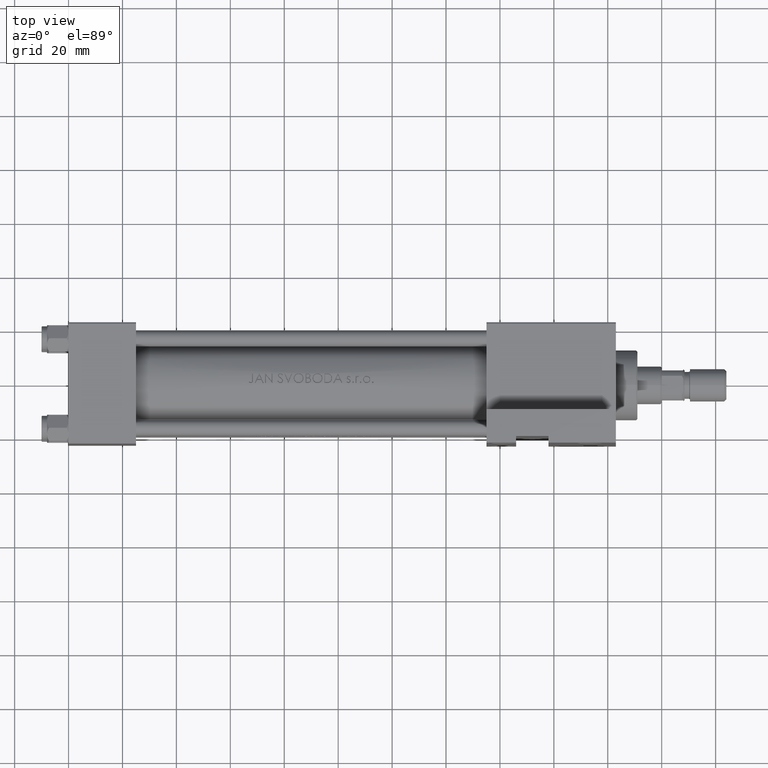
[diagram: clean part render]
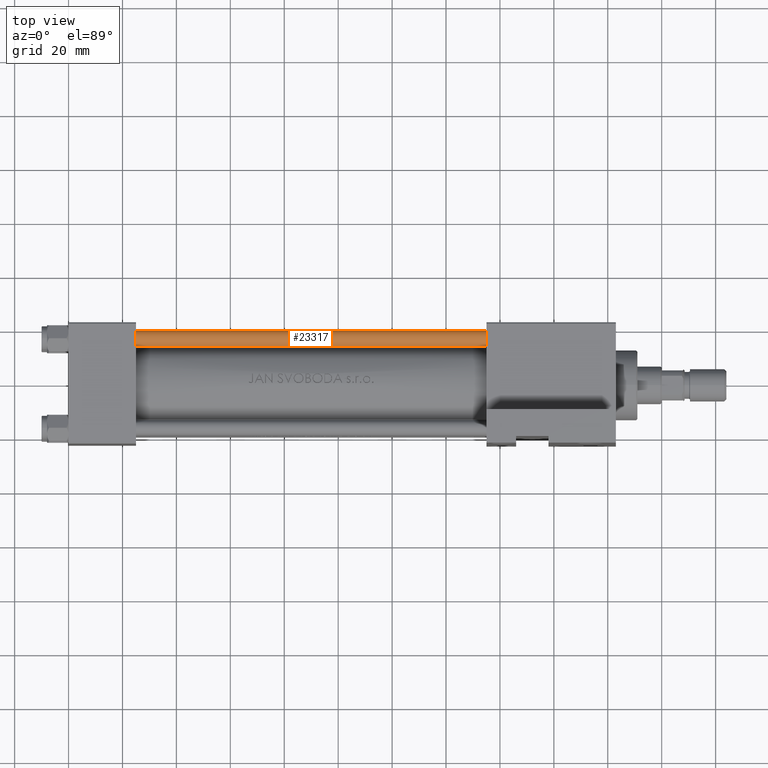
[diagram: same view with one face highlighted and labeled with its STEP entity id]
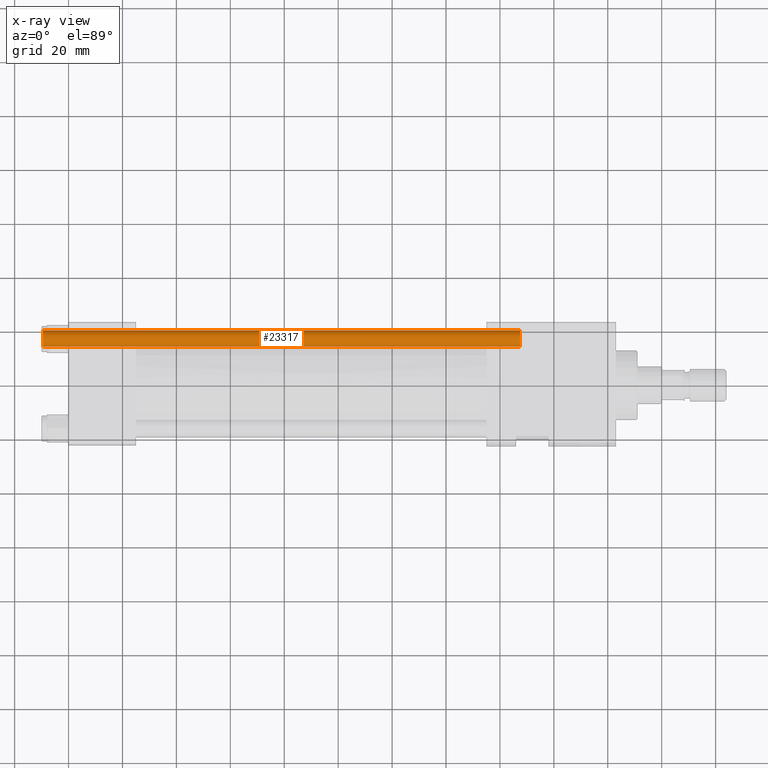
[diagram: x-ray of the same camera — body ghosted, the highlighted face saturated]
A machine part, top view. The second image highlights one B-rep face of the part: STEP entity #23317.
The next image is the same camera in x-ray: the body ghosted, the highlighted face saturated — about 0% of this face is hidden behind the body in this view.
In plain terms, the highlighted cylindrical surface (edge-blend (fillet) strip) has radius 3 mm, axis along (1, -0, 0).
Its self-contained STEP definition (entity closure, byte-faithful):
#75 = EDGE_LOOP ( 'NONE', ( #30136, #855, #27171, #32527 ) ) ;
#855 = ORIENTED_EDGE ( 'NONE', *, *, #8465, .T. ) ;
#1288 = EDGE_CURVE ( 'NONE', #5561, #9597, #2905, .T. ) ;
#2905 = LINE ( 'NONE', #32841, #43471 ) ;
#4872 = DIRECTION ( 'NONE',  ( 0.000000000000000000, 0.000000000000000000, -1.000000000000000000 ) ) ;
#5561 = VERTEX_POINT ( 'NONE', #20555 ) ;
#7518 = DIRECTION ( 'NONE',  ( -0.000000000000000000, -0.000000000000000000, -1.000000000000000000 ) ) ;
#8465 = EDGE_CURVE ( 'NONE', #37484, #5561, #19362, .T. ) ;
#9597 = VERTEX_POINT ( 'NONE', #12100 ) ;
#11369 = CARTESIAN_POINT ( 'NONE',  ( 3.000000000000000444, 3.673940397442060361E-16, 0.5000000000000281997 ) ) ;
#11457 = CARTESIAN_POINT ( 'NONE',  ( 0.000000000000000000, 0.000000000000000000, 177.5000000000000000 ) ) ;
#11905 = CARTESIAN_POINT ( 'NONE',  ( 3.000000000000000444, 3.673940397442060361E-16, 177.5000000000000000 ) ) ;
#12100 = CARTESIAN_POINT ( 'NONE',  ( -3.000000000000000444, 0.000000000000000000, 0.5000000000000281997 ) ) ;
#15060 = CARTESIAN_POINT ( 'NONE',  ( 3.000000000000000444, 3.673940397442060361E-16, 178.0000000000000000 ) ) ;
#15318 = LINE ( 'NONE', #15060, #29957 ) ;
#17187 = FACE_OUTER_BOUND ( 'NONE', #75, .T. ) ;
#18733 = DIRECTION ( 'NONE',  ( -0.000000000000000000, -0.000000000000000000, -1.000000000000000000 ) ) ;
#19151 = AXIS2_PLACEMENT_3D ( 'NONE', #32397, #28514, #43848 ) ;
#19362 = CIRCLE ( 'NONE', #37913, 3.000000000000000444 ) ;
#20555 = CARTESIAN_POINT ( 'NONE',  ( -3.000000000000000444, 0.000000000000000000, 177.5000000000000000 ) ) ;
#23317 = ADVANCED_FACE ( 'NONE', ( #17187 ), #35689, .T. ) ;
#27015 = VERTEX_POINT ( 'NONE', #11369 ) ;
#27171 = ORIENTED_EDGE ( 'NONE', *, *, #1288, .T. ) ;
#27262 = CARTESIAN_POINT ( 'NONE',  ( 0.000000000000000000, 0.000000000000000000, 178.0000000000000000 ) ) ;
#28514 = DIRECTION ( 'NONE',  ( -0.000000000000000000, -0.000000000000000000, 1.000000000000000000 ) ) ;
#28627 = DIRECTION ( 'NONE',  ( -0.000000000000000000, -0.000000000000000000, -1.000000000000000000 ) ) ;
#29253 = CIRCLE ( 'NONE', #19151, 3.000000000000000444 ) ;
#29957 = VECTOR ( 'NONE', #18733, 1000.000000000000000 ) ;
#30136 = ORIENTED_EDGE ( 'NONE', *, *, #45364, .F. ) ;
#31788 = DIRECTION ( 'NONE',  ( -1.000000000000000000, 0.000000000000000000, 0.000000000000000000 ) ) ;
#32397 = CARTESIAN_POINT ( 'NONE',  ( 0.000000000000000000, 0.000000000000000000, 0.5000000000000281997 ) ) ;
#32527 = ORIENTED_EDGE ( 'NONE', *, *, #47484, .T. ) ;
#32841 = CARTESIAN_POINT ( 'NONE',  ( -3.000000000000000444, 0.000000000000000000, 178.0000000000000000 ) ) ;
#35689 = CYLINDRICAL_SURFACE ( 'NONE', #37762, 3.000000000000000444 ) ;
#37484 = VERTEX_POINT ( 'NONE', #11905 ) ;
#37762 = AXIS2_PLACEMENT_3D ( 'NONE', #27262, #28627, #31788 ) ;
#37913 = AXIS2_PLACEMENT_3D ( 'NONE', #11457, #4872, #44832 ) ;
#43471 = VECTOR ( 'NONE', #7518, 1000.000000000000000 ) ;
#43848 = DIRECTION ( 'NONE',  ( 1.000000000000000000, 0.000000000000000000, 0.000000000000000000 ) ) ;
#44832 = DIRECTION ( 'NONE',  ( 1.000000000000000000, 0.000000000000000000, 0.000000000000000000 ) ) ;
#45364 = EDGE_CURVE ( 'NONE', #37484, #27015, #15318, .T. ) ;
#47484 = EDGE_CURVE ( 'NONE', #9597, #27015, #29253, .T. ) ;